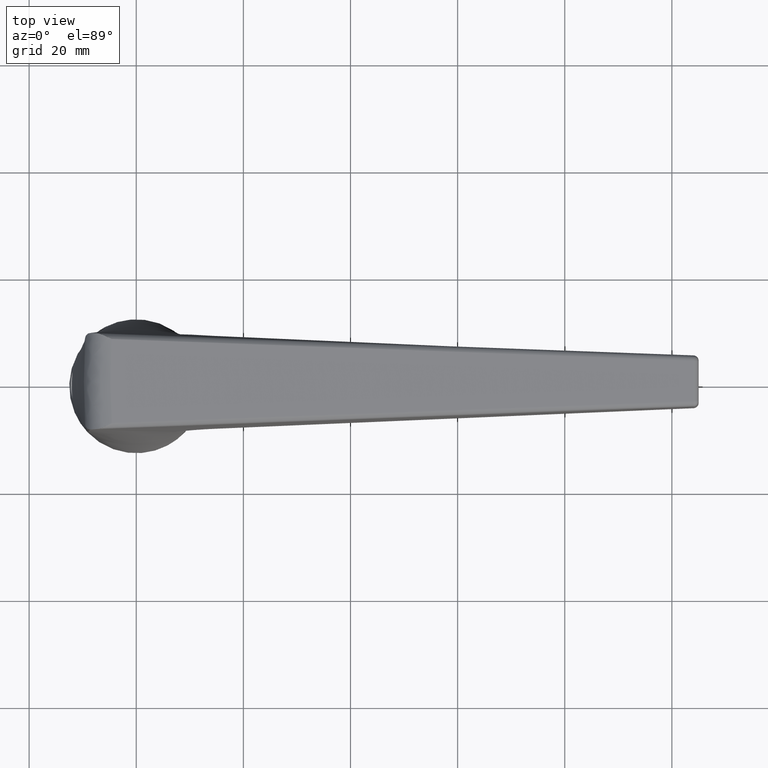
[diagram: clean part render]
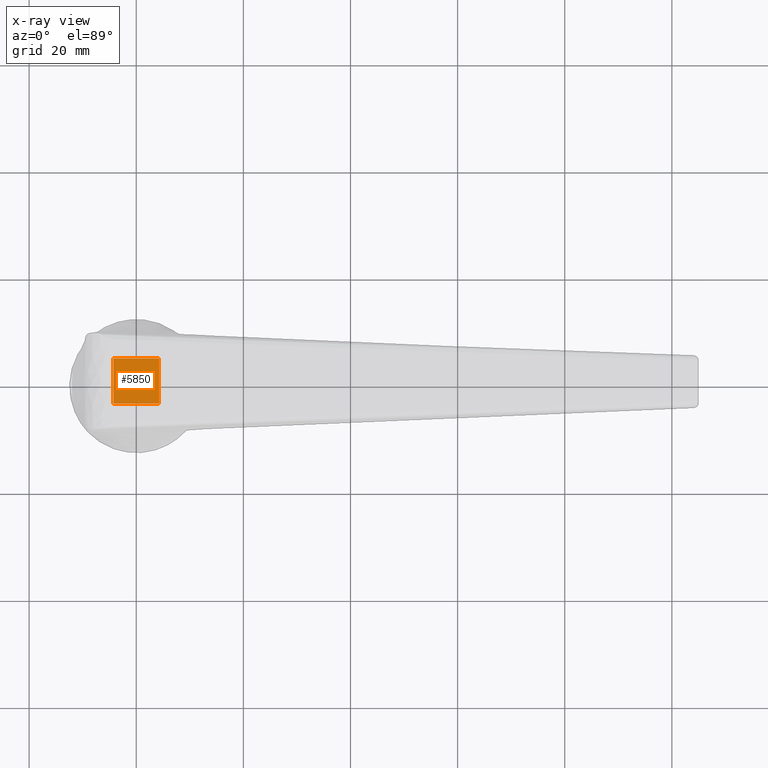
[diagram: x-ray — body ghosted, one internal face saturated and labeled with its STEP entity id]
A machine part, top view, then the same camera in x-ray: the body is ghosted and one INTERNAL B-rep face — a face not visible from any outside direction — is saturated and labeled: STEP entity #5850.
In plain terms, the highlighted planar face has unit normal (-0, 0, 1).
Its self-contained STEP definition (entity closure, byte-faithful):
#492 = CARTESIAN_POINT ( 'NONE',  ( 4.250000000000001800, 4.250000000000000000, 63.00000000000000000 ) ) ;
#786 = EDGE_LOOP ( 'NONE', ( #10440, #3270, #8800, #6182 ) ) ;
#1095 = DIRECTION ( 'NONE',  ( 1.000000000000000000, 0.0000000000000000000, 0.0000000000000000000 ) ) ;
#1415 = EDGE_CURVE ( 'NONE', #8883, #11538, #10943, .T. ) ;
#2005 = LINE ( 'NONE', #10464, #9509 ) ;
#2251 = VERTEX_POINT ( 'NONE', #9028 ) ;
#2752 = DIRECTION ( 'NONE',  ( -0.0000000000000000000, 1.000000000000000000, -0.0000000000000000000 ) ) ;
#3270 = ORIENTED_EDGE ( 'NONE', *, *, #7714, .T. ) ;
#5127 = DIRECTION ( 'NONE',  ( -1.000000000000000000, -0.0000000000000000000, -0.0000000000000000000 ) ) ;
#5398 = CARTESIAN_POINT ( 'NONE',  ( -4.250000000000001800, 4.250000000000000000, 63.00000000000000000 ) ) ;
#5770 = FACE_OUTER_BOUND ( 'NONE', #786, .T. ) ;
#5845 = EDGE_CURVE ( 'NONE', #11538, #8735, #8368, .T. ) ;
#5850 = ADVANCED_FACE ( 'NONE', ( #5770 ), #11647, .F. ) ;
#6088 = CARTESIAN_POINT ( 'NONE',  ( 0.0000000000000000000, 0.0000000000000000000, 63.00000000000000000 ) ) ;
#6182 = ORIENTED_EDGE ( 'NONE', *, *, #1415, .T. ) ;
#6248 = LINE ( 'NONE', #8993, #10916 ) ;
#6375 = AXIS2_PLACEMENT_3D ( 'NONE', #6088, #7100, #1095 ) ;
#7100 = DIRECTION ( 'NONE',  ( -0.0000000000000000000, 0.0000000000000000000, 1.000000000000000000 ) ) ;
#7133 = EDGE_CURVE ( 'NONE', #2251, #8883, #2005, .T. ) ;
#7714 = EDGE_CURVE ( 'NONE', #8735, #2251, #6248, .T. ) ;
#7918 = CARTESIAN_POINT ( 'NONE',  ( 4.250000000000001800, -4.250000000000000000, 63.00000000000000000 ) ) ;
#8084 = VECTOR ( 'NONE', #10753, 1000.000000000000000 ) ;
#8368 = LINE ( 'NONE', #8937, #8084 ) ;
#8536 = VECTOR ( 'NONE', #9392, 1000.000000000000000 ) ;
#8735 = VERTEX_POINT ( 'NONE', #7918 ) ;
#8800 = ORIENTED_EDGE ( 'NONE', *, *, #7133, .T. ) ;
#8883 = VERTEX_POINT ( 'NONE', #5398 ) ;
#8937 = CARTESIAN_POINT ( 'NONE',  ( 4.250000000000001800, 4.250000000000000000, 63.00000000000000000 ) ) ;
#8993 = CARTESIAN_POINT ( 'NONE',  ( -4.250000000000001800, -4.250000000000000000, 63.00000000000000000 ) ) ;
#9028 = CARTESIAN_POINT ( 'NONE',  ( -4.250000000000001800, -4.250000000000000000, 63.00000000000000000 ) ) ;
#9392 = DIRECTION ( 'NONE',  ( 1.000000000000000000, 0.0000000000000000000, 0.0000000000000000000 ) ) ;
#9430 = CARTESIAN_POINT ( 'NONE',  ( -4.250000000000001800, 4.250000000000000000, 63.00000000000000000 ) ) ;
#9509 = VECTOR ( 'NONE', #2752, 1000.000000000000000 ) ;
#10440 = ORIENTED_EDGE ( 'NONE', *, *, #5845, .T. ) ;
#10464 = CARTESIAN_POINT ( 'NONE',  ( -4.250000000000001800, 4.250000000000000000, 63.00000000000000000 ) ) ;
#10753 = DIRECTION ( 'NONE',  ( 0.0000000000000000000, -1.000000000000000000, 0.0000000000000000000 ) ) ;
#10916 = VECTOR ( 'NONE', #5127, 1000.000000000000000 ) ;
#10943 = LINE ( 'NONE', #9430, #8536 ) ;
#11538 = VERTEX_POINT ( 'NONE', #492 ) ;
#11647 = PLANE ( 'NONE',  #6375 ) ;